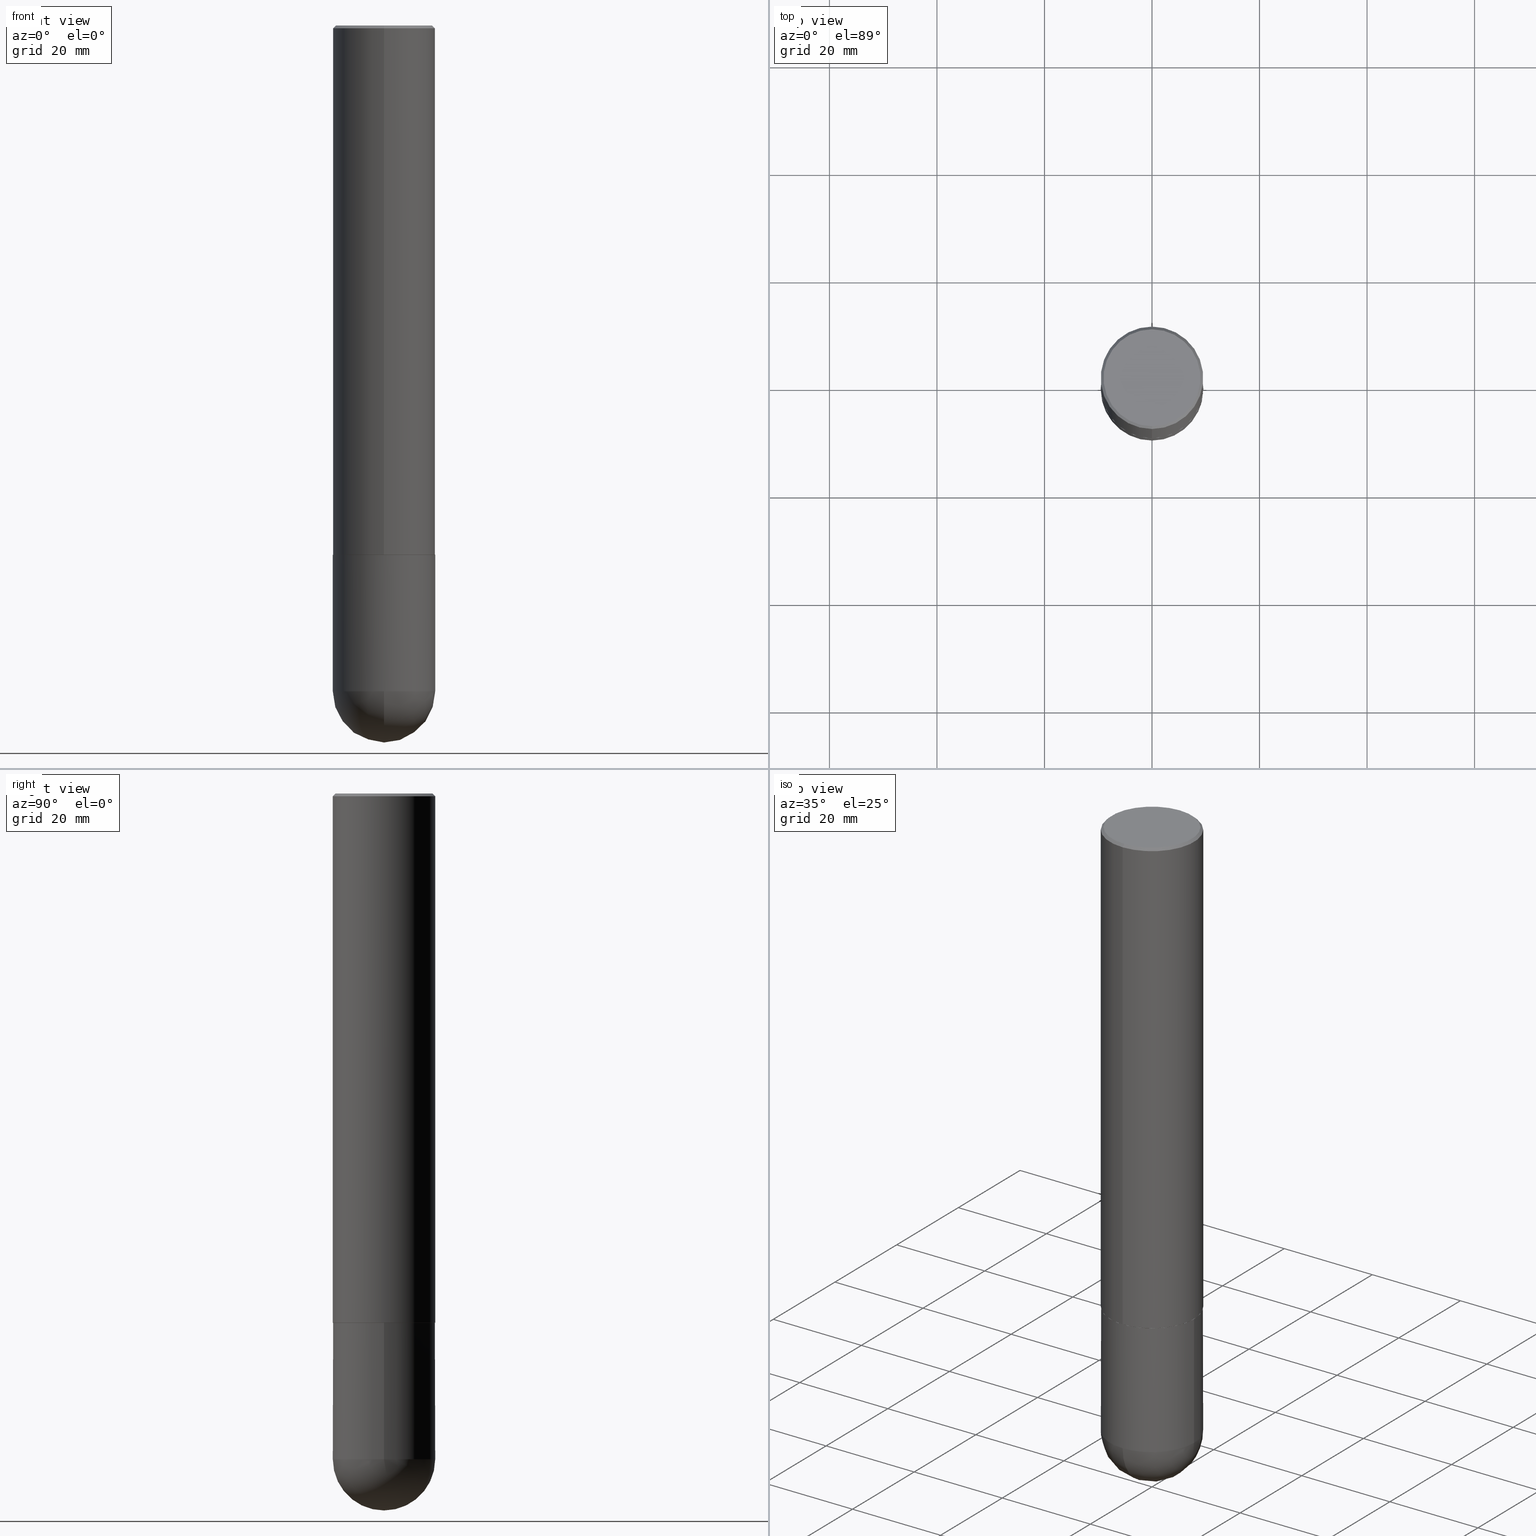
[diagram: canonical four-view strip — front | top / right | iso, engineering-drawing reading convention]
A machine part, canonical four-view strip (front | top / right | iso — engineering-drawing reading convention). The complete STEP part file that produces these views, byte-faithful:
ISO-10303-21;
HEADER;
FILE_DESCRIPTION (( 'STEP AP203' ),
    '1' );
FILE_NAME ('32217.STEP',
    '2024-02-21T17:39:49',
    ( '' ),
    ( '' ),
    'SwSTEP 2.0',
    'SolidWorks 2023',
    '' );
FILE_SCHEMA (( 'CONFIG_CONTROL_DESIGN' ));
ENDSEC;

DATA;
#1 = ADVANCED_FACE ( 'NONE', ( #16 ), #288, .T. ) ;
#2 = CIRCLE ( 'NONE', #82, 0.3739999999999999991 ) ;
#3 = VECTOR ( 'NONE', #230, 39.37007874015748143 ) ;
#4 = CC_DESIGN_APPROVAL ( #171, ( #394 ) ) ;
#5 = CARTESIAN_POINT ( 'NONE',  ( 1.159054065223865578E-28, -1.749515389500038536E-14, -4.875000000000000000 ) ) ;
#6 = DIRECTION ( 'NONE',  ( -4.851104656540954809E-15, -0.7071067811865486830, -0.7071067811865463515 ) ) ;
#7 = AXIS2_PLACEMENT_3D ( 'NONE', #126, #300, #391 ) ;
#8 = EDGE_CURVE ( 'NONE', #343, #9, #25, .T. ) ;
#9 = VERTEX_POINT ( 'NONE', #242 ) ;
#10 = CALENDAR_DATE ( 2024, 21, 2 ) ;
#11 = APPLICATION_CONTEXT ( 'configuration controlled 3d designs of mechanical parts and assemblies' ) ;
#12 = ORIENTED_EDGE ( 'NONE', *, *, #8, .T. ) ;
#13 = FACE_OUTER_BOUND ( 'NONE', #398, .T. ) ;
#14 = CIRCLE ( 'NONE', #156, 0.3750000000000001110 ) ;
#15 = EDGE_LOOP ( 'NONE', ( #274, #337, #12, #140 ) ) ;
#16 = FACE_OUTER_BOUND ( 'NONE', #42, .T. ) ;
#17 = DIRECTION ( 'NONE',  ( -1.000000000000000000, 6.982962677686265922E-15, -4.876176775795935793E-29 ) ) ;
#18 = VECTOR ( 'NONE', #87, 39.37007874015748143 ) ;
#19 = CC_DESIGN_APPROVAL ( #378, ( #272 ) ) ;
#20 = LINE ( 'NONE', #342, #18 ) ;
#21 = PRODUCT_RELATED_PRODUCT_CATEGORY ( 'detail', '', ( #321 ) ) ;
#22 = DIRECTION ( 'NONE',  ( -6.982962677686266711E-15, -1.000000000000000000, 3.491170356843521613E-15 ) ) ;
#23 = AXIS2_PLACEMENT_3D ( 'NONE', #48, #116, #17 ) ;
#24 = AXIS2_PLACEMENT_3D ( 'NONE', #124, #256, #247 ) ;
#25 = LINE ( 'NONE', #147, #122 ) ;
#26 = DIRECTION ( 'NONE',  ( -6.982962677686266711E-15, -1.000000000000000000, 2.921762560068730595E-15 ) ) ;
#27 = ADVANCED_FACE ( 'NONE', ( #176 ), #245, .F. ) ;
#28 = CC_DESIGN_PERSON_AND_ORGANIZATION_ASSIGNMENT ( #318, #93, ( #238 ) ) ;
#29 = PLANE ( 'NONE',  #220 ) ;
#30 = PRODUCT_DEFINITION_SHAPE ( 'NONE', 'NONE',  #394 ) ;
#31 = EDGE_LOOP ( 'NONE', ( #307, #224, #109, #71 ) ) ;
#32 = LINE ( 'NONE', #129, #260 ) ;
#33 = DIRECTION ( 'NONE',  ( -2.445685963754817288E-29, 3.491170356843521613E-15, 1.000000000000000000 ) ) ;
#34 = VERTEX_POINT ( 'NONE', #283 ) ;
#35 = DIRECTION ( 'NONE',  ( 6.982962677686265922E-15, 1.000000000000000000, 0.000000000000000000 ) ) ;
#36 = DIRECTION ( 'NONE',  ( 0.000000000000000000, 0.000000000000000000, 1.000000000000000000 ) ) ;
#37 = PERSON_AND_ORGANIZATION ( #401, #383 ) ;
#38 = DIRECTION ( 'NONE',  ( 1.000000000000000000, -6.982962677686266711E-15, 0.000000000000000000 ) ) ;
#39 = ORIENTED_EDGE ( 'NONE', *, *, #277, .F. ) ;
#40 = EDGE_CURVE ( 'NONE', #34, #234, #2, .T. ) ;
#41 = DIRECTION ( 'NONE',  ( 1.000000000000000000, -6.982962677686265922E-15, 4.876176775795935793E-29 ) ) ;
#42 = EDGE_LOOP ( 'NONE', ( #68, #303, #309, #200 ) ) ;
#43 = PERSON_AND_ORGANIZATION ( #401, #383 ) ;
#44 = AXIS2_PLACEMENT_3D ( 'NONE', #5, #225, #261 ) ;
#45 = VERTEX_POINT ( 'NONE', #346 ) ;
#46 = DIRECTION ( 'NONE',  ( -2.445685963754817288E-29, 3.491170356843521613E-15, 1.000000000000000000 ) ) ;
#47 = ORIENTED_EDGE ( 'NONE', *, *, #185, .F. ) ;
#48 = CARTESIAN_POINT ( 'NONE',  ( 2.618611004132444680E-15, 0.3749999999999865108, -3.875000000000001332 ) ) ;
#49 = DIRECTION ( 'NONE',  ( -6.982962677686266711E-15, -1.000000000000000000, 3.491170356843521613E-15 ) ) ;
#50 = ORIENTED_EDGE ( 'NONE', *, *, #323, .T. ) ;
#51 = CARTESIAN_POINT ( 'NONE',  ( 1.192166043015254091E-28, -1.702097152686033664E-14, -4.875000000000000000 ) ) ;
#52 = CC_DESIGN_PERSON_AND_ORGANIZATION_ASSIGNMENT ( #132, #232, ( #272 ) ) ;
#53 = AXIS2_PLACEMENT_3D ( 'NONE', #86, #55, #175 ) ;
#54 = APPROVAL_PERSON_ORGANIZATION ( #43, #102, #298 ) ;
#55 = DIRECTION ( 'NONE',  ( -2.445468806185136597E-29, 3.491481338843145583E-15, 1.000000000000000000 ) ) ;
#56 = SECURITY_CLASSIFICATION_LEVEL ( 'unclassified' ) ;
#57 = CONICAL_SURFACE ( 'NONE', #254, 0.3739999999999999991, 0.7853981633977896726 ) ;
#58 = EDGE_CURVE ( 'NONE', #69, #265, #259, .T. ) ;
#59 = ORIENTED_EDGE ( 'NONE', *, *, #277, .T. ) ;
#60 = CONICAL_SURFACE ( 'NONE', #387, 0.3750000000000001110, 0.7853981633974465026 ) ;
#61 = CC_DESIGN_SECURITY_CLASSIFICATION ( #238, ( #272 ) ) ;
#62 = CARTESIAN_POINT ( 'NONE',  ( 2.664535259100425790E-15, 0.3749999999999870104, -3.874000000000001442 ) ) ;
#63 = VERTEX_POINT ( 'NONE', #407 ) ;
#64 = CARTESIAN_POINT ( 'NONE',  ( 0.000000000000000000, 0.000000000000000000, 0.000000000000000000 ) ) ;
#65 = ORIENTED_EDGE ( 'NONE', *, *, #84, .F. ) ;
#66 = CIRCLE ( 'NONE', #206, 0.3739999999999999991 ) ;
#67 = SPHERICAL_SURFACE ( 'NONE', #278, 0.3750000000000001110 ) ;
#68 = ORIENTED_EDGE ( 'NONE', *, *, #293, .F. ) ;
#69 = VERTEX_POINT ( 'NONE', #255 ) ;
#70 = DATE_TIME_ROLE ( 'creation_date' ) ;
#71 = ORIENTED_EDGE ( 'NONE', *, *, #8, .F. ) ;
#72 = ADVANCED_BREP_SHAPE_REPRESENTATION ( '32217', ( #222, #90, #157 ), #118 ) ;
#73 = APPROVAL_DATE_TIME ( #377, #102 ) ;
#74 = CIRCLE ( 'NONE', #53, 0.3750000000000000555 ) ;
#75 = ORIENTED_EDGE ( 'NONE', *, *, #302, .F. ) ;
#76 = DIRECTION ( 'NONE',  ( -2.445685963754817288E-29, 3.491170356843521613E-15, 1.000000000000000000 ) ) ;
#77 =( CONVERSION_BASED_UNIT ( 'INCH', #341 ) LENGTH_UNIT ( ) NAMED_UNIT ( #221 ) );
#78 = SHAPE_DEFINITION_REPRESENTATION ( #30, #72 ) ;
#79 = DIRECTION ( 'NONE',  ( -6.982962677686266711E-15, -1.000000000000000000, 2.921762560068730595E-15 ) ) ;
#80 = VERTEX_POINT ( 'NONE', #95 ) ;
#81 = DIRECTION ( 'NONE',  ( -2.445468806185136597E-29, 3.491481338843145583E-15, 1.000000000000000000 ) ) ;
#82 = AXIS2_PLACEMENT_3D ( 'NONE', #403, #239, #205 ) ;
#83 = AXIS2_PLACEMENT_3D ( 'NONE', #250, #352, #49 ) ;
#84 = EDGE_CURVE ( 'NONE', #34, #343, #388, .T. ) ;
#85 = APPROVAL_PERSON_ORGANIZATION ( #315, #171, #233 ) ;
#86 = CARTESIAN_POINT ( 'NONE',  ( 9.476191623967404313E-29, -1.352949018801718908E-14, -3.875000000000000000 ) ) ;
#87 = DIRECTION ( 'NONE',  ( -2.445685963754817288E-29, 3.491170356843521613E-15, 1.000000000000000000 ) ) ;
#88 = DIRECTION ( 'NONE',  ( -2.445685963754817288E-29, 3.491170356843521613E-15, 1.000000000000000000 ) ) ;
#89 = EDGE_CURVE ( 'NONE', #285, #69, #97, .T. ) ;
#90 = MANIFOLD_SOLID_BREP ( 'Body-Move/Copy2[2]', #310 ) ;
#91 = UNCERTAINTY_MEASURE_WITH_UNIT (LENGTH_MEASURE( 1.000000000000000082E-05 ), #77, 'distance_accuracy_value', 'NONE');
#92 = CARTESIAN_POINT ( 'NONE',  ( 9.477033109549916885E-29, -1.352828513276864586E-14, -3.875000000000000000 ) ) ;
#93 = PERSON_AND_ORGANIZATION_ROLE ( 'classification_officer' ) ;
#94 = FACE_OUTER_BOUND ( 'NONE', #270, .T. ) ;
#95 = CARTESIAN_POINT ( 'NONE',  ( 0.3750000000000000555, -1.614810119214954068E-14, -3.875000000000000000 ) ) ;
#96 = ORIENTED_EDGE ( 'NONE', *, *, #173, .T. ) ;
#97 = CIRCLE ( 'NONE', #7, 0.3750000000000001110 ) ;
#98 = DIRECTION ( 'NONE',  ( -6.982962677686265922E-15, -1.000000000000000000, 3.491170356843521613E-15 ) ) ;
#99 = CALENDAR_DATE ( 2024, 21, 2 ) ;
#100 = COORDINATED_UNIVERSAL_TIME_OFFSET ( 5, 0, .BEHIND. ) ;
#101 = EDGE_LOOP ( 'NONE', ( #47, #131, #193, #114 ) ) ;
#102 = APPROVAL ( #269, 'UNSPECIFIED' ) ;
#103 = EDGE_CURVE ( 'NONE', #9, #136, #167, .T. ) ;
#104 = CARTESIAN_POINT ( 'NONE',  ( 1.159054065223865578E-28, -1.749515389500038536E-14, -4.875000000000000000 ) ) ;
#105 = ORIENTED_EDGE ( 'NONE', *, *, #293, .T. ) ;
#106 = VECTOR ( 'NONE', #191, 39.37007874015748143 ) ;
#107 = EDGE_LOOP ( 'NONE', ( #162, #59 ) ) ;
#108 = COORDINATED_UNIVERSAL_TIME_OFFSET ( 5, 0, .BEHIND. ) ;
#109 = ORIENTED_EDGE ( 'NONE', *, *, #103, .F. ) ;
#110 = AXIS2_PLACEMENT_3D ( 'NONE', #308, #137, #22 ) ;
#111 = CALENDAR_DATE ( 2024, 21, 2 ) ;
#112 = APPLICATION_CONTEXT ( 'configuration controlled 3d designs of mechanical parts and assemblies' ) ;
#113 = EDGE_CURVE ( 'NONE', #343, #134, #299, .T. ) ;
#114 = ORIENTED_EDGE ( 'NONE', *, *, #163, .F. ) ;
#115 = DIRECTION ( 'NONE',  ( -2.445468806185136877E-29, 3.491481338843145188E-15, 1.000000000000000000 ) ) ;
#116 = DIRECTION ( 'NONE',  ( 2.438088387897960049E-29, -3.491481338843145188E-15, -1.000000000000000000 ) ) ;
#117 = AXIS2_PLACEMENT_3D ( 'NONE', #411, #182, #392 ) ;
#118 =( GEOMETRIC_REPRESENTATION_CONTEXT ( 3 ) GLOBAL_UNCERTAINTY_ASSIGNED_CONTEXT ( ( #91 ) ) GLOBAL_UNIT_ASSIGNED_CONTEXT ( ( #77, #202, #217 ) ) REPRESENTATION_CONTEXT ( 'NONE', 'WORKASPACE' ) );
#119 = CARTESIAN_POINT ( 'NONE',  ( 0.000000000000000000, 0.000000000000000000, 0.000000000000000000 ) ) ;
#120 = CARTESIAN_POINT ( 'NONE',  ( -2.664535259100258157E-15, -0.3750000000000173195, -4.874999999999999112 ) ) ;
#121 = ADVANCED_FACE ( 'NONE', ( #273 ), #332, .T. ) ;
#122 = VECTOR ( 'NONE', #180, 39.37007874015748143 ) ;
#123 = AXIS2_PLACEMENT_3D ( 'NONE', #119, #290, #249 ) ;
#124 = CARTESIAN_POINT ( 'NONE',  ( 1.192166043015254091E-28, -1.702097152686033664E-14, -4.875000000000000000 ) ) ;
#125 = ADVANCED_FACE ( 'NONE', ( #153 ), #60, .T. ) ;
#126 = CARTESIAN_POINT ( 'NONE',  ( 1.192166043015254091E-28, -1.702097152686033664E-14, -4.875000000000000000 ) ) ;
#127 = CARTESIAN_POINT ( 'NONE',  ( 2.657429831742868958E-15, 0.3739999999999865099, -3.875000000000001332 ) ) ;
#128 = VECTOR ( 'NONE', #248, 39.37007874015748143 ) ;
#129 = CARTESIAN_POINT ( 'NONE',  ( 2.618611004132351200E-15, 0.3750000000000000555, -0.02000000000000139513 ) ) ;
#130 = ADVANCED_FACE ( 'NONE', ( #13 ), #67, .T. ) ;
#131 = ORIENTED_EDGE ( 'NONE', *, *, #372, .T. ) ;
#132 = PERSON_AND_ORGANIZATION ( #401, #383 ) ;
#133 = CARTESIAN_POINT ( 'NONE',  ( 9.474587423586162919E-29, -1.352479396241180209E-14, -3.874000000000000110 ) ) ;
#134 = VERTEX_POINT ( 'NONE', #62 ) ;
#135 = AXIS2_PLACEMENT_3D ( 'NONE', #243, #375, #209 ) ;
#136 = VERTEX_POINT ( 'NONE', #228 ) ;
#137 = DIRECTION ( 'NONE',  ( -2.445685963754817288E-29, 3.491170356843521613E-15, 1.000000000000000000 ) ) ;
#138 = CARTESIAN_POINT ( 'NONE',  ( 9.477033109549916885E-29, -1.352828513276864586E-14, -3.875000000000000000 ) ) ;
#139 = CARTESIAN_POINT ( 'NONE',  ( 0.000000000000000000, 0.000000000000000000, 0.000000000000000000 ) ) ;
#140 = ORIENTED_EDGE ( 'NONE', *, *, #344, .F. ) ;
#141 = CALENDAR_DATE ( 2024, 21, 2 ) ;
#142 = AXIS2_PLACEMENT_3D ( 'NONE', #64, #324, #41 ) ;
#143 = EDGE_CURVE ( 'NONE', #80, #45, #408, .T. ) ;
#144 = CARTESIAN_POINT ( 'NONE',  ( -2.504081769186610188E-15, -0.3550000000000003153, 1.013023916094263007E-15 ) ) ;
#145 = CARTESIAN_POINT ( 'NONE',  ( 2.660982545421671434E-15, 0.3739999999999865099, -3.875000000000001332 ) ) ;
#146 = CC_DESIGN_PERSON_AND_ORGANIZATION_ASSIGNMENT ( #37, #357, ( #394 ) ) ;
#147 = CARTESIAN_POINT ( 'NONE',  ( -2.618611004132351989E-15, -0.3750000000000002776, 1.309188883816321591E-15 ) ) ;
#148 = APPROVAL_ROLE ( '' ) ;
#149 = VERTEX_POINT ( 'NONE', #161 ) ;
#150 = ADVANCED_FACE ( 'NONE', ( #218 ), #29, .F. ) ;
#151 = DIRECTION ( 'NONE',  ( -2.445685963754817008E-29, 3.491170356843521613E-15, 1.000000000000000000 ) ) ;
#152 = ORIENTED_EDGE ( 'NONE', *, *, #246, .F. ) ;
#153 = FACE_OUTER_BOUND ( 'NONE', #101, .T. ) ;
#154 = ADVANCED_FACE ( 'NONE', ( #294 ), #258, .F. ) ;
#155 = CARTESIAN_POINT ( 'NONE',  ( 1.159054065223865578E-28, -1.749515389500038536E-14, -4.875000000000000000 ) ) ;
#156 = AXIS2_PLACEMENT_3D ( 'NONE', #366, #204, #280 ) ;
#157 = AXIS2_PLACEMENT_3D ( 'NONE', #139, #36, #402 ) ;
#158 = APPROVAL_STATUS ( 'not_yet_approved' ) ;
#159 = EDGE_LOOP ( 'NONE', ( #395, #105, #195, #65 ) ) ;
#160 = APPROVAL_DATE_TIME ( #264, #378 ) ;
#161 = CARTESIAN_POINT ( 'NONE',  ( 2.548781377355489085E-15, 0.3550000000000003153, -1.465707037264639846E-15 ) ) ;
#162 = ORIENTED_EDGE ( 'NONE', *, *, #143, .T. ) ;
#163 = EDGE_CURVE ( 'NONE', #149, #136, #32, .T. ) ;
#164 = DIRECTION ( 'NONE',  ( -2.445685963754817288E-29, 3.491170356843521613E-15, 1.000000000000000000 ) ) ;
#165 = ORIENTED_EDGE ( 'NONE', *, *, #173, .F. ) ;
#166 = DATE_AND_TIME ( #141, #331 ) ;
#167 = CIRCLE ( 'NONE', #347, 0.3750000000000001110 ) ;
#168 = LOCAL_TIME ( 12, 39, 49.00000000000000000, #325 ) ;
#169 = ORIENTED_EDGE ( 'NONE', *, *, #240, .F. ) ;
#170 = ORIENTED_EDGE ( 'NONE', *, *, #163, .T. ) ;
#171 = APPROVAL ( #311, 'UNSPECIFIED' ) ;
#172 = CARTESIAN_POINT ( 'NONE',  ( 0.000000000000000000, 0.000000000000000000, 0.000000000000000000 ) ) ;
#173 = EDGE_CURVE ( 'NONE', #63, #229, #213, .T. ) ;
#174 = CIRCLE ( 'NONE', #24, 0.3750000000000001110 ) ;
#175 = DIRECTION ( 'NONE',  ( 1.000000000000000000, -6.982962677686266711E-15, 0.000000000000000000 ) ) ;
#176 = FACE_OUTER_BOUND ( 'NONE', #107, .T. ) ;
#177 = DESIGN_CONTEXT ( 'detailed design', #112, 'design' ) ;
#178 = CARTESIAN_POINT ( 'NONE',  ( 9.474587423586162919E-29, -1.352479396241180209E-14, -3.874000000000000110 ) ) ;
#179 =( LENGTH_UNIT ( ) NAMED_UNIT ( * ) SI_UNIT ( $, .METRE. ) );
#180 = DIRECTION ( 'NONE',  ( -2.445685963754817288E-29, 3.491170356843521613E-15, 1.000000000000000000 ) ) ;
#181 = AXIS2_PLACEMENT_3D ( 'NONE', #172, #46, #282 ) ;
#182 = DIRECTION ( 'NONE',  ( -2.445685963754817288E-29, 3.491170356843521613E-15, 1.000000000000000000 ) ) ;
#183 = DIRECTION ( 'NONE',  ( -2.445685963754817288E-29, 3.491170356843521613E-15, 1.000000000000000000 ) ) ;
#184 = FACE_OUTER_BOUND ( 'NONE', #400, .T. ) ;
#185 = EDGE_CURVE ( 'NONE', #340, #149, #190, .T. ) ;
#186 = CIRCLE ( 'NONE', #350, 0.3750000000000004996 ) ;
#187 = ORIENTED_EDGE ( 'NONE', *, *, #336, .T. ) ;
#188 = DIRECTION ( 'NONE',  ( 6.982962677686265922E-15, 1.000000000000000000, -3.494488891895535640E-15 ) ) ;
#189 = EDGE_CURVE ( 'NONE', #134, #343, #186, .T. ) ;
#190 = CIRCLE ( 'NONE', #110, 0.3550000000000003153 ) ;
#191 = DIRECTION ( 'NONE',  ( -4.937700262166233838E-15, -0.7071067811867864927, 0.7071067811863085417 ) ) ;
#192 = DIRECTION ( 'NONE',  ( -2.445468806185136597E-29, 3.491481338843145583E-15, 1.000000000000000000 ) ) ;
#193 = ORIENTED_EDGE ( 'NONE', *, *, #103, .T. ) ;
#194 = DIRECTION ( 'NONE',  ( -6.982962677686265922E-15, -1.000000000000000000, 3.494488891895535640E-15 ) ) ;
#195 = ORIENTED_EDGE ( 'NONE', *, *, #113, .F. ) ;
#196 = ADVANCED_FACE ( 'NONE', ( #235 ), #412, .T. ) ;
#197 = ORIENTED_EDGE ( 'NONE', *, *, #372, .F. ) ;
#198 = CLOSED_SHELL ( 'NONE', ( #121, #130, #201, #27, #196 ) ) ;
#199 = AXIS2_PLACEMENT_3D ( 'NONE', #133, #33, #358 ) ;
#200 = ORIENTED_EDGE ( 'NONE', *, *, #189, .F. ) ;
#201 = ADVANCED_FACE ( 'NONE', ( #184 ), #380, .T. ) ;
#202 =( NAMED_UNIT ( * ) PLANE_ANGLE_UNIT ( ) SI_UNIT ( $, .RADIAN. ) );
#203 = COORDINATED_UNIVERSAL_TIME_OFFSET ( 5, 0, .BEHIND. ) ;
#204 = DIRECTION ( 'NONE',  ( -2.445468806185136597E-29, 3.491481338843145583E-15, 1.000000000000000000 ) ) ;
#205 = DIRECTION ( 'NONE',  ( -6.982962677686266711E-15, -1.000000000000000000, 2.921762560068730595E-15 ) ) ;
#206 = AXIS2_PLACEMENT_3D ( 'NONE', #319, #215, #353 ) ;
#207 = APPROVAL_PERSON_ORGANIZATION ( #360, #378, #148 ) ;
#208 = DIRECTION ( 'NONE',  ( 1.000000000000000000, -6.982962677686260400E-15, 0.000000000000000000 ) ) ;
#209 = DIRECTION ( 'NONE',  ( 6.982962677686265922E-15, 1.000000000000000000, -3.494488891895535640E-15 ) ) ;
#210 = MECHANICAL_CONTEXT ( 'NONE', #11, 'mechanical' ) ;
#211 = CARTESIAN_POINT ( 'NONE',  ( 0.3750000000000001110, -2.618611004132350411E-15, 1.828566290923476483E-29 ) ) ;
#212 = CARTESIAN_POINT ( 'NONE',  ( -0.3750000000000001110, 2.664535259100376486E-15, -1.844600658845590159E-29 ) ) ;
#213 = CIRCLE ( 'NONE', #44, 0.3750000000000001110 ) ;
#214 = CALENDAR_DATE ( 2024, 21, 2 ) ;
#215 = DIRECTION ( 'NONE',  ( -2.445685963754817288E-29, 3.491170356843521613E-15, 1.000000000000000000 ) ) ;
#216 = COORDINATED_UNIVERSAL_TIME_OFFSET ( 5, 0, .BEHIND. ) ;
#217 =( NAMED_UNIT ( * ) SI_UNIT ( $, .STERADIAN. ) SOLID_ANGLE_UNIT ( ) );
#218 = FACE_OUTER_BOUND ( 'NONE', #295, .T. ) ;
#219 = ORIENTED_EDGE ( 'NONE', *, *, #58, .F. ) ;
#220 = AXIS2_PLACEMENT_3D ( 'NONE', #390, #151, #98 ) ;
#221 = DIMENSIONAL_EXPONENTS ( 1.000000000000000000, 0.000000000000000000, 0.000000000000000000, 0.000000000000000000, 0.000000000000000000, 0.000000000000000000, 0.000000000000000000 ) ;
#222 = MANIFOLD_SOLID_BREP ( 'Body-Move/Copy2[1]', #198 ) ;
#223 = DIRECTION ( 'NONE',  ( 2.445685963754817008E-29, -3.491170356843521613E-15, -1.000000000000000000 ) ) ;
#224 = ORIENTED_EDGE ( 'NONE', *, *, #328, .T. ) ;
#225 = DIRECTION ( 'NONE',  ( -1.000000000000000000, 7.105427357601001070E-15, -4.926315508542082329E-29 ) ) ;
#226 = FACE_OUTER_BOUND ( 'NONE', #159, .T. ) ;
#227 = ORIENTED_EDGE ( 'NONE', *, *, #286, .T. ) ;
#228 = CARTESIAN_POINT ( 'NONE',  ( 2.618611004132351200E-15, 0.3750000000000000555, -0.02000000000000139513 ) ) ;
#229 = VERTEX_POINT ( 'NONE', #120 ) ;
#230 = DIRECTION ( 'NONE',  ( 5.024295867789777373E-15, 0.7071067811867913777, 0.7071067811863036567 ) ) ;
#231 = AXIS2_PLACEMENT_3D ( 'NONE', #51, #81, #208 ) ;
#232 = PERSON_AND_ORGANIZATION_ROLE ( 'creator' ) ;
#233 = APPROVAL_ROLE ( '' ) ;
#234 = VERTEX_POINT ( 'NONE', #145 ) ;
#235 = FACE_OUTER_BOUND ( 'NONE', #305, .T. ) ;
#236 = ORIENTED_EDGE ( 'NONE', *, *, #246, .T. ) ;
#237 = VECTOR ( 'NONE', #6, 39.37007874015748143 ) ;
#238 = SECURITY_CLASSIFICATION ( '', '', #56 ) ;
#239 = DIRECTION ( 'NONE',  ( -2.445685963754817288E-29, 3.491170356843521613E-15, 1.000000000000000000 ) ) ;
#240 = EDGE_CURVE ( 'NONE', #234, #34, #66, .T. ) ;
#241 = ORIENTED_EDGE ( 'NONE', *, *, #40, .F. ) ;
#242 = CARTESIAN_POINT ( 'NONE',  ( -2.572686749164324336E-15, -0.3750000000000001665, -0.01999999999999877570 ) ) ;
#243 = CARTESIAN_POINT ( 'NONE',  ( 4.891371927509655875E-31, -6.982340713687073104E-17, -0.02000000000000008715 ) ) ;
#244 = AXIS2_PLACEMENT_3D ( 'NONE', #386, #223, #326 ) ;
#245 = PLANE ( 'NONE',  #23 ) ;
#246 = EDGE_CURVE ( 'NONE', #265, #45, #406, .T. ) ;
#247 = DIRECTION ( 'NONE',  ( 1.000000000000000000, -6.982962677686260400E-15, 0.000000000000000000 ) ) ;
#248 = DIRECTION ( 'NONE',  ( -2.445468806185136877E-29, 3.491481338843145188E-15, 1.000000000000000000 ) ) ;
#249 = DIRECTION ( 'NONE',  ( 1.000000000000000000, -6.982962677686265922E-15, 4.876176775795935793E-29 ) ) ;
#250 = CARTESIAN_POINT ( 'NONE',  ( 5.535603777375557270E-45, -7.901969468367114777E-31, -2.263415605851883702E-16 ) ) ;
#251 = EDGE_CURVE ( 'NONE', #229, #285, #174, .T. ) ;
#252 = PERSON_AND_ORGANIZATION ( #401, #383 ) ;
#253 = ADVANCED_FACE ( 'NONE', ( #94 ), #329, .T. ) ;
#254 = AXIS2_PLACEMENT_3D ( 'NONE', #92, #354, #26 ) ;
#255 = CARTESIAN_POINT ( 'NONE',  ( 2.618611004132467951E-15, 0.3749999999999829026, -4.875000000000001776 ) ) ;
#256 = DIRECTION ( 'NONE',  ( -2.445468806185136597E-29, 3.491481338843145583E-15, 1.000000000000000000 ) ) ;
#257 = ORIENTED_EDGE ( 'NONE', *, *, #336, .F. ) ;
#258 = PLANE ( 'NONE',  #244 ) ;
#259 = CIRCLE ( 'NONE', #231, 0.3750000000000001110 ) ;
#260 = VECTOR ( 'NONE', #296, 39.37007874015748143 ) ;
#261 = DIRECTION ( 'NONE',  ( -7.105427357601001070E-15, -1.000000000000000000, 0.000000000000000000 ) ) ;
#262 = CARTESIAN_POINT ( 'NONE',  ( -2.611628041454568944E-15, -0.3740000000000135438, -3.874999999999999112 ) ) ;
#263 = CARTESIAN_POINT ( 'NONE',  ( 4.891371927509655875E-31, -6.982340713687073104E-17, -0.02000000000000008715 ) ) ;
#264 = DATE_AND_TIME ( #214, #348 ) ;
#265 = VERTEX_POINT ( 'NONE', #349 ) ;
#266 = LINE ( 'NONE', #127, #3 ) ;
#267 = CC_DESIGN_DATE_AND_TIME_ASSIGNMENT ( #367, #304, ( #238 ) ) ;
#268 = DIRECTION ( 'NONE',  ( -1.000000000000000000, 6.982962677686265922E-15, -4.883557194083112340E-29 ) ) ;
#269 = APPROVAL_STATUS ( 'not_yet_approved' ) ;
#270 = EDGE_LOOP ( 'NONE', ( #197, #257, #170, #276 ) ) ;
#271 = CIRCLE ( 'NONE', #317, 0.3750000000000001110 ) ;
#272 = PRODUCT_DEFINITION_FORMATION_WITH_SPECIFIED_SOURCE ( 'ANY', '', #321, .NOT_KNOWN. ) ;
#273 = FACE_OUTER_BOUND ( 'NONE', #335, .T. ) ;
#274 = ORIENTED_EDGE ( 'NONE', *, *, #328, .F. ) ;
#275 = ORIENTED_EDGE ( 'NONE', *, *, #286, .F. ) ;
#276 = ORIENTED_EDGE ( 'NONE', *, *, #344, .T. ) ;
#277 = EDGE_CURVE ( 'NONE', #45, #80, #74, .T. ) ;
#278 = AXIS2_PLACEMENT_3D ( 'NONE', #104, #268, #397 ) ;
#279 = LOCAL_TIME ( 12, 39, 49.00000000000000000, #203 ) ;
#280 = DIRECTION ( 'NONE',  ( 1.000000000000000000, -6.982962677686260400E-15, 0.000000000000000000 ) ) ;
#281 = DIRECTION ( 'NONE',  ( -6.982962677686266711E-15, -1.000000000000000000, 2.913971193241876822E-15 ) ) ;
#282 = DIRECTION ( 'NONE',  ( -6.982962677686266711E-15, -1.000000000000000000, 3.491170356843521613E-15 ) ) ;
#283 = CARTESIAN_POINT ( 'NONE',  ( -2.611628041454568944E-15, -0.3740000000000135438, -3.874999999999999112 ) ) ;
#284 = CARTESIAN_POINT ( 'NONE',  ( -2.618611004132258903E-15, -0.3750000000000140443, -3.873999999999999222 ) ) ;
#285 = VERTEX_POINT ( 'NONE', #316 ) ;
#286 = EDGE_CURVE ( 'NONE', #63, #69, #271, .T. ) ;
#287 = APPROVAL_DATE_TIME ( #166, #171 ) ;
#288 = CONICAL_SURFACE ( 'NONE', #364, 0.3739999999999999991, 0.7853981633977896726 ) ;
#289 = AXIS2_PLACEMENT_3D ( 'NONE', #384, #314, #379 ) ;
#290 = DIRECTION ( 'NONE',  ( -2.445468806185136597E-29, 3.491481338843145583E-15, 1.000000000000000000 ) ) ;
#291 = AXIS2_PLACEMENT_3D ( 'NONE', #374, #183, #194 ) ;
#292 = ORIENTED_EDGE ( 'NONE', *, *, #251, .T. ) ;
#293 = EDGE_CURVE ( 'NONE', #234, #134, #266, .T. ) ;
#294 = FACE_OUTER_BOUND ( 'NONE', #365, .T. ) ;
#295 = EDGE_LOOP ( 'NONE', ( #241, #169 ) ) ;
#296 = DIRECTION ( 'NONE',  ( 4.937700262164538576E-15, 0.7071067811865437980, -0.7071067811865512365 ) ) ;
#297 = CARTESIAN_POINT ( 'NONE',  ( -2.572686749164324336E-15, -0.3750000000000001665, -0.01999999999999877570 ) ) ;
#298 = APPROVAL_ROLE ( '' ) ;
#299 = CIRCLE ( 'NONE', #199, 0.3750000000000004996 ) ;
#300 = DIRECTION ( 'NONE',  ( -2.445468806185136597E-29, 3.491481338843145583E-15, 1.000000000000000000 ) ) ;
#301 = ORIENTED_EDGE ( 'NONE', *, *, #251, .F. ) ;
#302 = EDGE_CURVE ( 'NONE', #265, #229, #14, .T. ) ;
#303 = ORIENTED_EDGE ( 'NONE', *, *, #240, .T. ) ;
#304 = DATE_TIME_ROLE ( 'classification_date' ) ;
#305 = EDGE_LOOP ( 'NONE', ( #152, #330, #292, #50, #39 ) ) ;
#306 = CC_DESIGN_PERSON_AND_ORGANIZATION_ASSIGNMENT ( #359, #410, ( #272 ) ) ;
#307 = ORIENTED_EDGE ( 'NONE', *, *, #113, .T. ) ;
#308 = CARTESIAN_POINT ( 'NONE',  ( 5.535603777375557270E-45, -7.901969468367114777E-31, -2.263415605851883702E-16 ) ) ;
#309 = ORIENTED_EDGE ( 'NONE', *, *, #84, .T. ) ;
#310 = CLOSED_SHELL ( 'NONE', ( #385, #351, #125, #253, #371, #1, #150, #154 ) ) ;
#311 = APPROVAL_STATUS ( 'not_yet_approved' ) ;
#312 = ORIENTED_EDGE ( 'NONE', *, *, #58, .T. ) ;
#313 = CC_DESIGN_PERSON_AND_ORGANIZATION_ASSIGNMENT ( #252, #381, ( #321 ) ) ;
#314 = DIRECTION ( 'NONE',  ( -1.000000000000000000, 6.982962677686265922E-15, -4.883557194083112340E-29 ) ) ;
#315 = PERSON_AND_ORGANIZATION ( #401, #383 ) ;
#316 = CARTESIAN_POINT ( 'NONE',  ( 0.3750000000000001110, -1.789384186157111051E-14, -4.875000000000000000 ) ) ;
#317 = AXIS2_PLACEMENT_3D ( 'NONE', #155, #355, #35 ) ;
#318 = PERSON_AND_ORGANIZATION ( #401, #383 ) ;
#319 = CARTESIAN_POINT ( 'NONE',  ( 9.477033109549916885E-29, -1.352828513276864586E-14, -3.875000000000000000 ) ) ;
#320 = APPLICATION_PROTOCOL_DEFINITION ( 'international standard', 'config_control_design', 1994, #11 ) ;
#321 = PRODUCT ( '32217', '32217', '', ( #210 ) ) ;
#322 = LOCAL_TIME ( 12, 39, 49.00000000000000000, #100 ) ;
#323 = EDGE_CURVE ( 'NONE', #285, #80, #409, .T. ) ;
#324 = DIRECTION ( 'NONE',  ( -2.445468806185136597E-29, 3.491481338843145583E-15, 1.000000000000000000 ) ) ;
#325 = COORDINATED_UNIVERSAL_TIME_OFFSET ( 5, 0, .BEHIND. ) ;
#326 = DIRECTION ( 'NONE',  ( 6.982962677686265922E-15, 1.000000000000000000, -3.491170356843521613E-15 ) ) ;
#327 = LINE ( 'NONE', #297, #237 ) ;
#328 = EDGE_CURVE ( 'NONE', #134, #136, #20, .T. ) ;
#329 = CONICAL_SURFACE ( 'NONE', #135, 0.3750000000000001110, 0.7853981633974465026 ) ;
#330 = ORIENTED_EDGE ( 'NONE', *, *, #302, .T. ) ;
#331 = LOCAL_TIME ( 12, 39, 49.00000000000000000, #108 ) ;
#332 = CYLINDRICAL_SURFACE ( 'NONE', #142, 0.3750000000000001110 ) ;
#333 = ORIENTED_EDGE ( 'NONE', *, *, #185, .T. ) ;
#334 = CARTESIAN_POINT ( 'NONE',  ( 4.891371927509655875E-31, -6.982340713687073104E-17, -0.02000000000000008715 ) ) ;
#335 = EDGE_LOOP ( 'NONE', ( #312, #236, #369, #362, #393 ) ) ;
#336 = EDGE_CURVE ( 'NONE', #149, #340, #376, .T. ) ;
#337 = ORIENTED_EDGE ( 'NONE', *, *, #189, .T. ) ;
#338 = VECTOR ( 'NONE', #115, 39.37007874015748143 ) ;
#339 = CYLINDRICAL_SURFACE ( 'NONE', #181, 0.3750000000000002776 ) ;
#340 = VERTEX_POINT ( 'NONE', #144 ) ;
#341 = LENGTH_MEASURE_WITH_UNIT ( LENGTH_MEASURE( 0.02539999999999999897 ), #179 );
#342 = CARTESIAN_POINT ( 'NONE',  ( 2.664535259100377275E-15, 0.3750000000000002776, -1.309188883816321591E-15 ) ) ;
#343 = VERTEX_POINT ( 'NONE', #284 ) ;
#344 = EDGE_CURVE ( 'NONE', #136, #9, #370, .T. ) ;
#345 = CYLINDRICAL_SURFACE ( 'NONE', #117, 0.3750000000000002776 ) ;
#346 = CARTESIAN_POINT ( 'NONE',  ( -0.3750000000000000555, -1.261069559833838480E-14, -3.875000000000000000 ) ) ;
#347 = AXIS2_PLACEMENT_3D ( 'NONE', #334, #164, #361 ) ;
#348 = LOCAL_TIME ( 12, 39, 49.00000000000000000, #216 ) ;
#349 = CARTESIAN_POINT ( 'NONE',  ( -0.3750000000000001110, -1.261069559833838637E-14, -4.875000000000000000 ) ) ;
#350 = AXIS2_PLACEMENT_3D ( 'NONE', #178, #76, #281 ) ;
#351 = ADVANCED_FACE ( 'NONE', ( #399 ), #339, .T. ) ;
#352 = DIRECTION ( 'NONE',  ( -2.445685963754817288E-29, 3.491170356843521613E-15, 1.000000000000000000 ) ) ;
#353 = DIRECTION ( 'NONE',  ( -6.982962677686266711E-15, -1.000000000000000000, 2.921762560068730595E-15 ) ) ;
#354 = DIRECTION ( 'NONE',  ( -2.445685963754817288E-29, 3.491170356843521613E-15, 1.000000000000000000 ) ) ;
#355 = DIRECTION ( 'NONE',  ( 1.000000000000000000, -6.982962677686265922E-15, 4.883557194083112340E-29 ) ) ;
#356 = DIRECTION ( 'NONE',  ( 2.445685963754817288E-29, -3.491170356843521613E-15, -1.000000000000000000 ) ) ;
#357 = PERSON_AND_ORGANIZATION_ROLE ( 'creator' ) ;
#358 = DIRECTION ( 'NONE',  ( -6.982962677686266711E-15, -1.000000000000000000, 2.913971193241876822E-15 ) ) ;
#359 = PERSON_AND_ORGANIZATION ( #401, #383 ) ;
#360 = PERSON_AND_ORGANIZATION ( #401, #383 ) ;
#361 = DIRECTION ( 'NONE',  ( -6.982962677686265922E-15, -1.000000000000000000, 3.494488891895535640E-15 ) ) ;
#362 = ORIENTED_EDGE ( 'NONE', *, *, #323, .F. ) ;
#363 = CARTESIAN_POINT ( 'NONE',  ( 9.476191623967404313E-29, -1.352949018801718908E-14, -3.875000000000000000 ) ) ;
#364 = AXIS2_PLACEMENT_3D ( 'NONE', #138, #88, #79 ) ;
#365 = EDGE_LOOP ( 'NONE', ( #187, #333 ) ) ;
#366 = CARTESIAN_POINT ( 'NONE',  ( 1.192166043015254091E-28, -1.702097152686033664E-14, -4.875000000000000000 ) ) ;
#367 = DATE_AND_TIME ( #10, #279 ) ;
#368 = ORIENTED_EDGE ( 'NONE', *, *, #89, .F. ) ;
#369 = ORIENTED_EDGE ( 'NONE', *, *, #143, .F. ) ;
#370 = CIRCLE ( 'NONE', #291, 0.3750000000000001110 ) ;
#371 = ADVANCED_FACE ( 'NONE', ( #405 ), #345, .T. ) ;
#372 = EDGE_CURVE ( 'NONE', #340, #9, #327, .T. ) ;
#373 = APPLICATION_PROTOCOL_DEFINITION ( 'international standard', 'config_control_design', 1994, #112 ) ;
#374 = CARTESIAN_POINT ( 'NONE',  ( 4.891371927509655875E-31, -6.982340713687073104E-17, -0.02000000000000008715 ) ) ;
#375 = DIRECTION ( 'NONE',  ( 2.445685963754817288E-29, -3.491170356843521613E-15, -1.000000000000000000 ) ) ;
#376 = CIRCLE ( 'NONE', #83, 0.3550000000000003153 ) ;
#377 = DATE_AND_TIME ( #111, #322 ) ;
#378 = APPROVAL ( #158, 'UNSPECIFIED' ) ;
#379 = DIRECTION ( 'NONE',  ( 6.982962677686265922E-15, 1.000000000000000000, -2.913971193241879977E-15 ) ) ;
#380 = SPHERICAL_SURFACE ( 'NONE', #289, 0.3750000000000001110 ) ;
#381 = PERSON_AND_ORGANIZATION_ROLE ( 'design_owner' ) ;
#382 = AXIS2_PLACEMENT_3D ( 'NONE', #363, #192, #38 ) ;
#383 = ORGANIZATION ( 'UNSPECIFIED', 'UNSPECIFIED', '' ) ;
#384 = CARTESIAN_POINT ( 'NONE',  ( 1.159054065223865578E-28, -1.749515389500038536E-14, -4.875000000000000000 ) ) ;
#385 = ADVANCED_FACE ( 'NONE', ( #226 ), #57, .T. ) ;
#386 = CARTESIAN_POINT ( 'NONE',  ( 2.478951750578626970E-15, 0.3550000000000003153, -1.352536256972045341E-15 ) ) ;
#387 = AXIS2_PLACEMENT_3D ( 'NONE', #263, #356, #188 ) ;
#388 = LINE ( 'NONE', #262, #106 ) ;
#389 = DATE_AND_TIME ( #99, #168 ) ;
#390 = CARTESIAN_POINT ( 'NONE',  ( 9.477033109549916885E-29, -1.352828513276864586E-14, -3.875000000000000000 ) ) ;
#391 = DIRECTION ( 'NONE',  ( 1.000000000000000000, -6.982962677686260400E-15, 0.000000000000000000 ) ) ;
#392 = DIRECTION ( 'NONE',  ( -6.982962677686266711E-15, -1.000000000000000000, 3.491170356843521613E-15 ) ) ;
#393 = ORIENTED_EDGE ( 'NONE', *, *, #89, .T. ) ;
#394 = PRODUCT_DEFINITION ( 'UNKNOWN', '', #272, #177 ) ;
#395 = ORIENTED_EDGE ( 'NONE', *, *, #40, .T. ) ;
#396 = CC_DESIGN_APPROVAL ( #102, ( #238 ) ) ;
#397 = DIRECTION ( 'NONE',  ( 6.982962677686265922E-15, 1.000000000000000000, -2.913971193241879977E-15 ) ) ;
#398 = EDGE_LOOP ( 'NONE', ( #275, #96, #75, #219 ) ) ;
#399 = FACE_OUTER_BOUND ( 'NONE', #31, .T. ) ;
#400 = EDGE_LOOP ( 'NONE', ( #165, #227, #368, #301 ) ) ;
#401 = PERSON ( 'UNSPECIFIED', 'UNSPECIFIED', 'UNSPECIFIED', ('UNSPECIFIED'), ('UNSPECIFIED'), ('UNSPECIFIED') ) ;
#402 = DIRECTION ( 'NONE',  ( 1.000000000000000000, 0.000000000000000000, 0.000000000000000000 ) ) ;
#403 = CARTESIAN_POINT ( 'NONE',  ( 9.477033109549916885E-29, -1.352828513276864586E-14, -3.875000000000000000 ) ) ;
#404 = CC_DESIGN_DATE_AND_TIME_ASSIGNMENT ( #389, #70, ( #394 ) ) ;
#405 = FACE_OUTER_BOUND ( 'NONE', #15, .T. ) ;
#406 = LINE ( 'NONE', #212, #338 ) ;
#407 = CARTESIAN_POINT ( 'NONE',  ( 1.252362582248019568E-28, -1.878149726958255384E-14, -5.250000000000000000 ) ) ;
#408 = CIRCLE ( 'NONE', #382, 0.3750000000000000555 ) ;
#409 = LINE ( 'NONE', #211, #128 ) ;
#410 = PERSON_AND_ORGANIZATION_ROLE ( 'design_supplier' ) ;
#411 = CARTESIAN_POINT ( 'NONE',  ( 0.000000000000000000, 0.000000000000000000, 0.000000000000000000 ) ) ;
#412 = CYLINDRICAL_SURFACE ( 'NONE', #123, 0.3750000000000001110 ) ;
ENDSEC;
END-ISO-10303-21;
